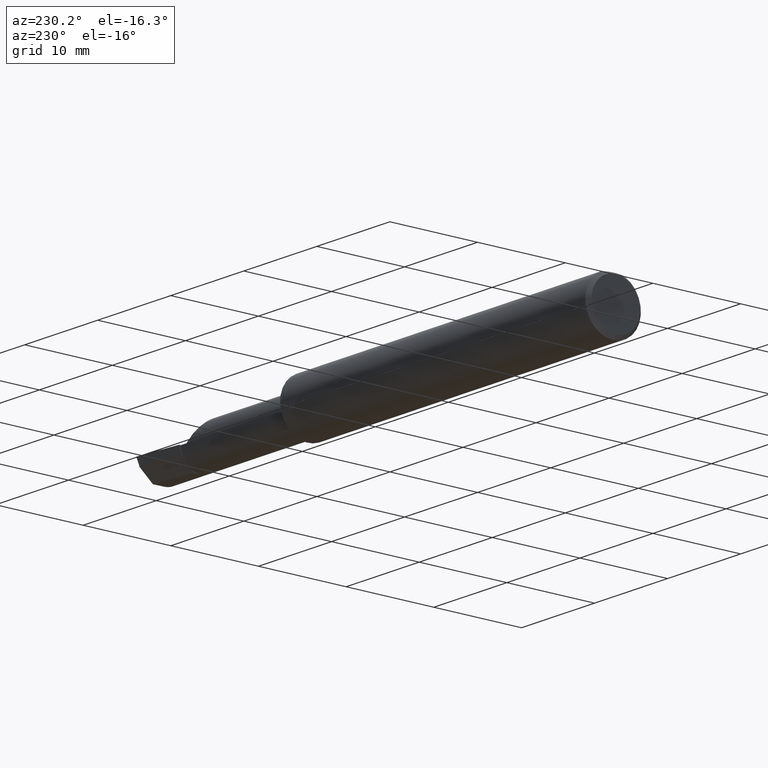
[diagram: clean part render]
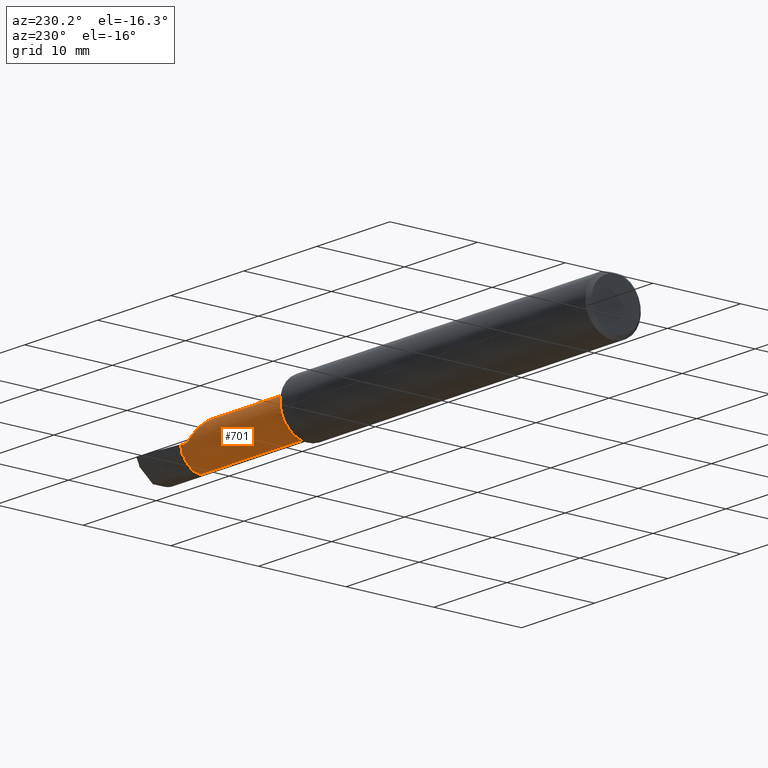
[diagram: same view with one face highlighted and labeled with its STEP entity id]
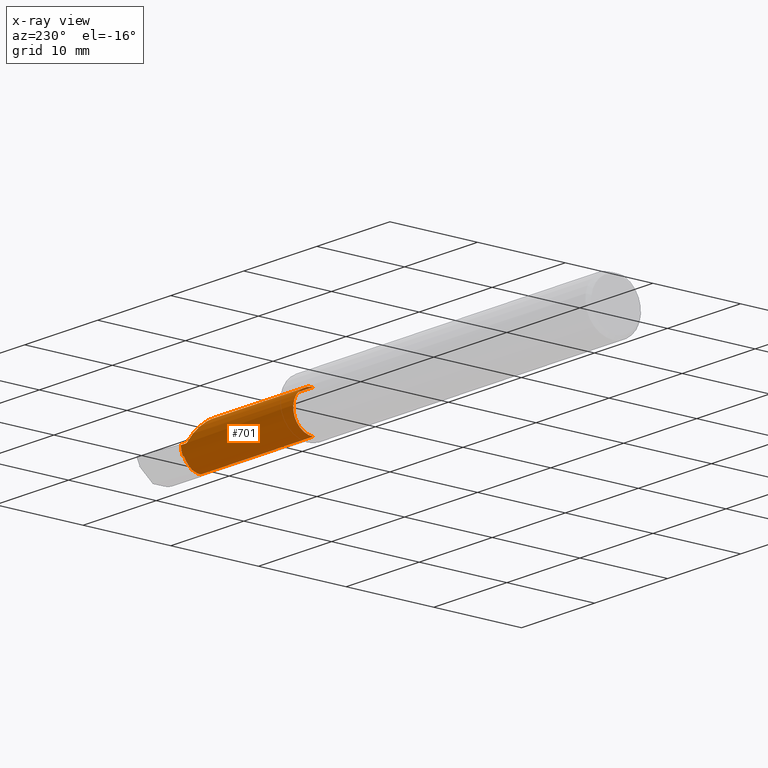
[diagram: x-ray of the same camera — body ghosted, the highlighted face saturated]
A machine part, auxiliary view. The second image highlights one B-rep face of the part: STEP entity #701.
The next image is the same camera in x-ray: the body ghosted, the highlighted face saturated — about 0% of this face is hidden behind the body in this view.
In plain terms, the highlighted cylindrical surface (edge-blend (fillet) strip) has radius 2.2606 mm, axis along (-1, -0, -0).
Its self-contained STEP definition (entity closure, byte-faithful):
#23 = DIRECTION ( 'NONE',  ( -1.000000000000000000, -0.000000000000000000, -0.000000000000000000 ) ) ;
#30 = CARTESIAN_POINT ( 'NONE',  ( 2.288443222880010453, 0.03600902606772960618, -0.03928945244276215581 ) ) ;
#51 = EDGE_CURVE ( 'NONE', #1035, #204, #352, .T. ) ;
#63 = CARTESIAN_POINT ( 'NONE',  ( 2.288937985906247530, -0.002059794679488745426, -0.07857848776395173762 ) ) ;
#65 = DIRECTION ( 'NONE',  ( 0.000000000000000000, 0.000000000000000000, 1.000000000000000000 ) ) ;
#70 =( BOUNDED_CURVE ( )  B_SPLINE_CURVE ( 3, ( #1256, #1136, #30, #643 ),
 .UNSPECIFIED., .F., .T. ) 
 B_SPLINE_CURVE_WITH_KNOTS ( ( 4, 4 ),
 ( 2.820608254191868003, 2.832531324869317579 ),
 .UNSPECIFIED. ) 
 CURVE ( )  GEOMETRIC_REPRESENTATION_ITEM ( )  RATIONAL_B_SPLINE_CURVE ( ( 1.000000000000000000, 0.9999881534005539141, 0.9999881534005539141, 1.000000000000000000 ) ) 
 REPRESENTATION_ITEM ( '' )  );
#76 = ORIENTED_EDGE ( 'NONE', *, *, #586, .T. ) ;
#82 = CARTESIAN_POINT ( 'NONE',  ( 1.660000000000000364, -0.04384999999999998621, -0.08899999999999999578 ) ) ;
#86 = CARTESIAN_POINT ( 'NONE',  ( 2.290000000000000036, 0.04514999999999999569, -3.414809992080329023E-17 ) ) ;
#116 = ORIENTED_EDGE ( 'NONE', *, *, #685, .F. ) ;
#120 = EDGE_CURVE ( 'NONE', #710, #617, #696, .T. ) ;
#124 = CARTESIAN_POINT ( 'NONE',  ( 2.290000000000000036, -0.001847796191672966852, -0.07846537373417498962 ) ) ;
#129 = AXIS2_PLACEMENT_3D ( 'NONE', #436, #23, #1160 ) ;
#138 = VERTEX_POINT ( 'NONE', #86 ) ;
#143 = EDGE_CURVE ( 'NONE', #138, #201, #758, .T. ) ;
#160 = ORIENTED_EDGE ( 'NONE', *, *, #1090, .F. ) ;
#161 = CARTESIAN_POINT ( 'NONE',  ( 2.285242608473425641, 0.03631816732134428988, -0.03865313633247555863 ) ) ;
#165 = DIRECTION ( 'NONE',  ( -1.000000000000000000, -0.000000000000000000, -0.000000000000000000 ) ) ;
#170 = DIRECTION ( 'NONE',  ( 0.000000000000000000, 0.000000000000000000, -1.000000000000000000 ) ) ;
#201 = VERTEX_POINT ( 'NONE', #777 ) ;
#204 = VERTEX_POINT ( 'NONE', #1199 ) ;
#214 = EDGE_CURVE ( 'NONE', #617, #204, #469, .T. ) ;
#226 = VERTEX_POINT ( 'NONE', #798 ) ;
#258 = EDGE_LOOP ( 'NONE', ( #623, #1241, #993, #1005, #574, #679, #76, #1255, #516, #116, #160, #719 ) ) ;
#276 = AXIS2_PLACEMENT_3D ( 'NONE', #873, #578, #170 ) ;
#294 = DIRECTION ( 'NONE',  ( -1.000000000000000000, -0.000000000000000000, -0.000000000000000000 ) ) ;
#305 = CARTESIAN_POINT ( 'NONE',  ( 2.285242608473425641, 0.03631816732134428988, -0.03865313633247555863 ) ) ;
#313 = EDGE_CURVE ( 'NONE', #1143, #1048, #1179, .T. ) ;
#322 = CARTESIAN_POINT ( 'NONE',  ( 2.286445840771017313, 0.02802661582150205513, -0.05585014933228257122 ) ) ;
#333 = CARTESIAN_POINT ( 'NONE',  ( 2.208027827235976570, 0.04494492526557266471, 0.05232217276402370554 ) ) ;
#339 = FACE_OUTER_BOUND ( 'NONE', #258, .T. ) ;
#352 = LINE ( 'NONE', #1078, #711 ) ;
#357 = DIRECTION ( 'NONE',  ( 0.000000000000000000, 0.000000000000000000, 1.000000000000000000 ) ) ;
#389 = CARTESIAN_POINT ( 'NONE',  ( 2.171349999999999891, -0.04385000000000000009, 0.08899999999999999578 ) ) ;
#400 = CIRCLE ( 'NONE', #552, 0.08899999999999999578 ) ;
#402 = CARTESIAN_POINT ( 'NONE',  ( 2.288937985906247530, -0.002059794679488745426, -0.07857848776395173762 ) ) ;
#436 = CARTESIAN_POINT ( 'NONE',  ( 1.660000000000000364, -0.04385000000000000009, 0.000000000000000000 ) ) ;
#461 = LINE ( 'NONE', #82, #1152 ) ;
#469 = B_SPLINE_CURVE_WITH_KNOTS ( 'NONE', 3,
 ( #1119, #1106, #1322, #697 ),
 .UNSPECIFIED., .F., .F.,
 ( 4, 4 ),
 ( 0.000000000000000000, 0.0001159281800398605754 ),
 .UNSPECIFIED. ) ;
#473 = CARTESIAN_POINT ( 'NONE',  ( 2.290000000000000036, -0.04385000000000000009, 0.000000000000000000 ) ) ;
#516 = ORIENTED_EDGE ( 'NONE', *, *, #143, .T. ) ;
#524 = CARTESIAN_POINT ( 'NONE',  ( 1.660000000000000364, 0.04514999999999999569, -3.414809992080329023E-17 ) ) ;
#552 = AXIS2_PLACEMENT_3D ( 'NONE', #1083, #1071, #357 ) ;
#563 = CARTESIAN_POINT ( 'NONE',  ( 2.288937985906247530, -0.002059794679488745426, -0.07857848776395173762 ) ) ;
#574 = ORIENTED_EDGE ( 'NONE', *, *, #51, .F. ) ;
#578 = DIRECTION ( 'NONE',  ( 1.000000000000000000, 0.000000000000000000, 0.000000000000000000 ) ) ;
#580 = CARTESIAN_POINT ( 'NONE',  ( 2.290000000000000036, -0.04384999999999997927, -0.08899999999999999578 ) ) ;
#586 = EDGE_CURVE ( 'NONE', #924, #226, #400, .T. ) ;
#593 = DIRECTION ( 'NONE',  ( 0.000000000000000000, 0.000000000000000000, 1.000000000000000000 ) ) ;
#617 = VERTEX_POINT ( 'NONE', #655 ) ;
#623 = ORIENTED_EDGE ( 'NONE', *, *, #313, .T. ) ;
#633 = CYLINDRICAL_SURFACE ( 'NONE', #129, 0.08899999999999999578 ) ;
#637 = EDGE_CURVE ( 'NONE', #1143, #930, #1102, .T. ) ;
#643 = CARTESIAN_POINT ( 'NONE',  ( 2.290000000000000036, 0.03585161589387594189, -0.03960621698553223186 ) ) ;
#651 = DIRECTION ( 'NONE',  ( -1.000000000000000000, -0.000000000000000000, -0.000000000000000000 ) ) ;
#655 = CARTESIAN_POINT ( 'NONE',  ( 1.685000000000000275, -0.03928589842362753548, 0.08888289473684209130 ) ) ;
#662 = EDGE_CURVE ( 'NONE', #226, #138, #1249, .T. ) ;
#663 = CARTESIAN_POINT ( 'NONE',  ( 2.290000000000000036, -0.001847796191672966852, -0.07846537373417498962 ) ) ;
#670 = CARTESIAN_POINT ( 'NONE',  ( 2.289647485154894913, -0.001918411434092635610, -0.07850317379378003724 ) ) ;
#679 = ORIENTED_EDGE ( 'NONE', *, *, #683, .F. ) ;
#683 = EDGE_CURVE ( 'NONE', #924, #1035, #917, .T. ) ;
#685 = EDGE_CURVE ( 'NONE', #856, #201, #70, .T. ) ;
#696 = CIRCLE ( 'NONE', #276, 0.08899999999999999578 ) ;
#697 = CARTESIAN_POINT ( 'NONE',  ( 1.684999549995950252, -0.04385000000000000009, 0.08899999999999999578 ) ) ;
#701 = ADVANCED_FACE ( 'NONE', ( #339 ), #633, .T. ) ;
#710 = VERTEX_POINT ( 'NONE', #912 ) ;
#711 = VECTOR ( 'NONE', #165, 39.37007874015748143 ) ;
#719 = ORIENTED_EDGE ( 'NONE', *, *, #637, .F. ) ;
#720 = CARTESIAN_POINT ( 'NONE',  ( 2.171350000000000335, 0.008122574649203021663, 0.08900000000000000966 ) ) ;
#755 = DIRECTION ( 'NONE',  ( -1.000000000000000000, -0.000000000000000000, -0.000000000000000000 ) ) ;
#758 = CIRCLE ( 'NONE', #864, 0.08899999999999999578 ) ;
#777 = CARTESIAN_POINT ( 'NONE',  ( 2.290000000000000036, 0.03585161589387594189, -0.03960621698553223186 ) ) ;
#798 = CARTESIAN_POINT ( 'NONE',  ( 2.260000000000000231, 0.04514999999999997488, -3.414809992080329023E-17 ) ) ;
#801 = CARTESIAN_POINT ( 'NONE',  ( 2.290000000000000036, -0.04385000000000000009, 0.000000000000000000 ) ) ;
#856 = VERTEX_POINT ( 'NONE', #161 ) ;
#864 = AXIS2_PLACEMENT_3D ( 'NONE', #473, #755, #65 ) ;
#873 = CARTESIAN_POINT ( 'NONE',  ( 1.685000000000000275, -0.04385000000000000009, 0.000000000000000000 ) ) ;
#893 = EDGE_CURVE ( 'NONE', #1048, #710, #461, .T. ) ;
#912 = CARTESIAN_POINT ( 'NONE',  ( 1.685000000000000275, -0.04384999999999998621, -0.08899999999999999578 ) ) ;
#917 =( BOUNDED_CURVE ( )  B_SPLINE_CURVE ( 3, ( #942, #333, #720, #1131 ),
 .UNSPECIFIED., .F., .T. ) 
 B_SPLINE_CURVE_WITH_KNOTS ( ( 4, 4 ),
 ( 4.716321574790802273, 6.283185307179586232 ),
 .UNSPECIFIED. ) 
 CURVE ( )  GEOMETRIC_REPRESENTATION_ITEM ( )  RATIONAL_B_SPLINE_CURVE ( ( 1.000000000000000000, 0.8056638636166326695, 0.8056638636166326695, 1.000000000000000000 ) ) 
 REPRESENTATION_ITEM ( '' )  );
#924 = VERTEX_POINT ( 'NONE', #1283 ) ;
#930 = VERTEX_POINT ( 'NONE', #563 ) ;
#942 = CARTESIAN_POINT ( 'NONE',  ( 2.260000000000000231, 0.04514931179509204529, 0.0003499999999999638925 ) ) ;
#959 = VECTOR ( 'NONE', #1056, 39.37007874015748143 ) ;
#978 = CARTESIAN_POINT ( 'NONE',  ( 2.289293480241941126, -0.001989077639623231669, -0.07854087849327558157 ) ) ;
#993 = ORIENTED_EDGE ( 'NONE', *, *, #120, .T. ) ;
#1001 = AXIS2_PLACEMENT_3D ( 'NONE', #801, #294, #593 ) ;
#1005 = ORIENTED_EDGE ( 'NONE', *, *, #214, .T. ) ;
#1018 = CARTESIAN_POINT ( 'NONE',  ( 2.287719783628060277, 0.01479621339370657158, -0.06961399813952577620 ) ) ;
#1035 = VERTEX_POINT ( 'NONE', #389 ) ;
#1048 = VERTEX_POINT ( 'NONE', #580 ) ;
#1056 = DIRECTION ( 'NONE',  ( 1.000000000000000000, 0.000000000000000000, 0.000000000000000000 ) ) ;
#1071 = DIRECTION ( 'NONE',  ( -1.000000000000000000, -0.000000000000000000, -0.000000000000000000 ) ) ;
#1078 = CARTESIAN_POINT ( 'NONE',  ( 1.660000000000000364, -0.04385000000000000009, 0.08899999999999999578 ) ) ;
#1083 = CARTESIAN_POINT ( 'NONE',  ( 2.260000000000000231, -0.04385000000000000009, 0.000000000000000000 ) ) ;
#1090 = EDGE_CURVE ( 'NONE', #930, #856, #1236, .T. ) ;
#1102 =( BOUNDED_CURVE ( )  B_SPLINE_CURVE ( 3, ( #663, #670, #978, #63 ),
 .UNSPECIFIED., .F., .F. ) 
 B_SPLINE_CURVE_WITH_KNOTS ( ( 4, 4 ),
 ( 3.450653982310268653, 3.453353844081592516 ),
 .UNSPECIFIED. ) 
 CURVE ( )  GEOMETRIC_REPRESENTATION_ITEM ( )  RATIONAL_B_SPLINE_CURVE ( ( 1.000000000000000000, 0.9999993925622936430, 0.9999993925622936430, 1.000000000000000000 ) ) 
 REPRESENTATION_ITEM ( '' )  );
#1106 = CARTESIAN_POINT ( 'NONE',  ( 1.685000000000000275, -0.04080726561575169498, 0.08896101634190878293 ) ) ;
#1119 = CARTESIAN_POINT ( 'NONE',  ( 1.685000000000000275, -0.03928589842362753548, 0.08888289473684209130 ) ) ;
#1131 = CARTESIAN_POINT ( 'NONE',  ( 2.171349999999999891, -0.04385000000000000009, 0.08899999999999999578 ) ) ;
#1136 = CARTESIAN_POINT ( 'NONE',  ( 2.286857406917959246, 0.03616454505259020236, -0.03897175512811042186 ) ) ;
#1143 = VERTEX_POINT ( 'NONE', #124 ) ;
#1152 = VECTOR ( 'NONE', #651, 39.37007874015748143 ) ;
#1160 = DIRECTION ( 'NONE',  ( 0.000000000000000000, 0.000000000000000000, 1.000000000000000000 ) ) ;
#1179 = CIRCLE ( 'NONE', #1001, 0.08899999999999999578 ) ;
#1199 = CARTESIAN_POINT ( 'NONE',  ( 1.684999549995950252, -0.04385000000000000009, 0.08899999999999999578 ) ) ;
#1236 =( BOUNDED_CURVE ( )  B_SPLINE_CURVE ( 3, ( #402, #1018, #322, #305 ),
 .UNSPECIFIED., .F., .T. ) 
 B_SPLINE_CURVE_WITH_KNOTS ( ( 4, 4 ),
 ( 4.414898696640120690, 5.047644286529844315 ),
 .UNSPECIFIED. ) 
 CURVE ( )  GEOMETRIC_REPRESENTATION_ITEM ( )  RATIONAL_B_SPLINE_CURVE ( ( 1.000000000000000000, 0.9669134457620006673, 0.9669134457620006673, 1.000000000000000000 ) ) 
 REPRESENTATION_ITEM ( '' )  );
#1241 = ORIENTED_EDGE ( 'NONE', *, *, #893, .T. ) ;
#1249 = LINE ( 'NONE', #524, #959 ) ;
#1255 = ORIENTED_EDGE ( 'NONE', *, *, #662, .T. ) ;
#1256 = CARTESIAN_POINT ( 'NONE',  ( 2.285242608473425641, 0.03631816732134428988, -0.03865313633247555863 ) ) ;
#1283 = CARTESIAN_POINT ( 'NONE',  ( 2.260000000000000231, 0.04514931179509204529, 0.0003499999999999638925 ) ) ;
#1322 = CARTESIAN_POINT ( 'NONE',  ( 1.684999549995950252, -0.04232863280787584059, 0.08899999999999999578 ) ) ;